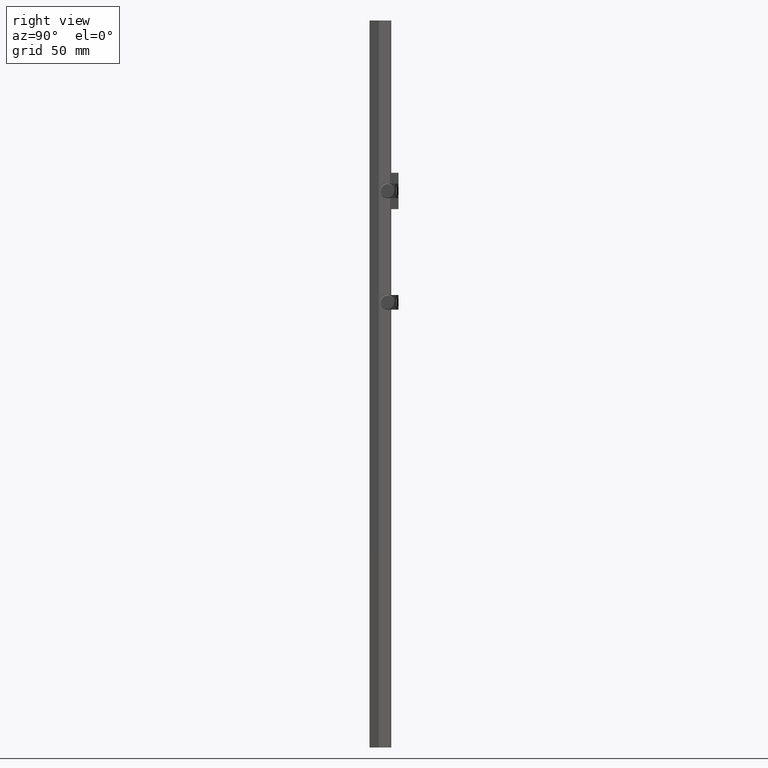
[diagram: clean part render]
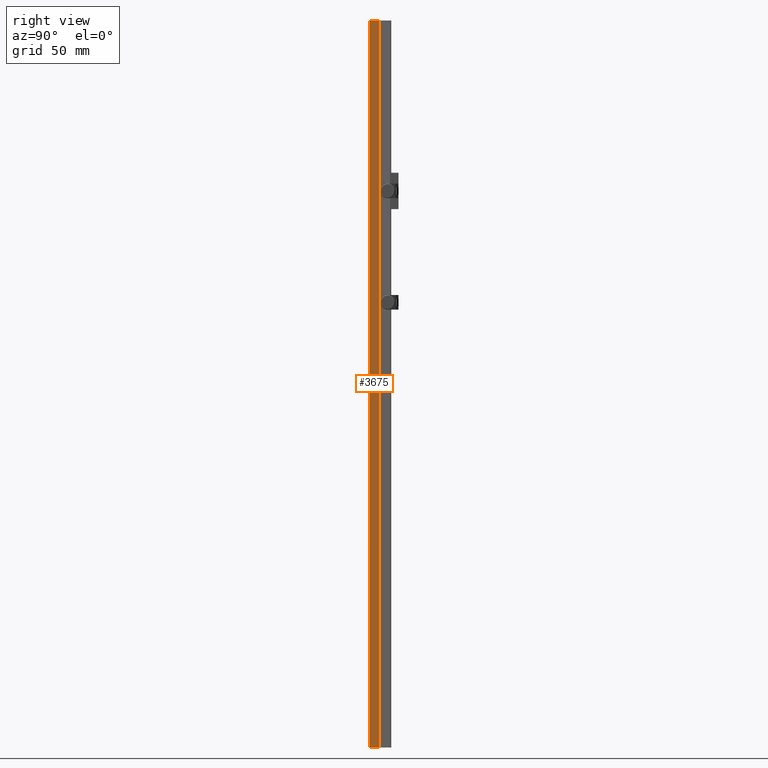
[diagram: same view with one face highlighted and labeled with its STEP entity id]
A machine part, right view. The second image highlights one B-rep face of the part: STEP entity #3675.
In plain terms, the highlighted planar face has unit normal (-1, -0, 0).
Its self-contained STEP definition (entity closure, byte-faithful):
#54 = ORIENTED_EDGE ( 'NONE', *, *, #4070, .F. ) ;
#238 = LINE ( 'NONE', #5365, #5312 ) ;
#351 = LINE ( 'NONE', #5810, #6372 ) ;
#661 = CARTESIAN_POINT ( 'NONE',  ( 20.00000000000000355, -6.499999999999993783, 250.0000000000000000 ) ) ;
#756 = EDGE_CURVE ( 'NONE', #7666, #1298, #238, .T. ) ;
#1298 = VERTEX_POINT ( 'NONE', #3364 ) ;
#1424 = VERTEX_POINT ( 'NONE', #6780 ) ;
#2619 = CARTESIAN_POINT ( 'NONE',  ( 20.00000000000000355, -6.499999999999993783, 250.0000000000000000 ) ) ;
#2630 = LINE ( 'NONE', #3965, #7120 ) ;
#3194 = DIRECTION ( 'NONE',  ( -0.000000000000000000, 0.000000000000000000, -1.000000000000000000 ) ) ;
#3202 = ORIENTED_EDGE ( 'NONE', *, *, #756, .T. ) ;
#3287 = FACE_OUTER_BOUND ( 'NONE', #8005, .T. ) ;
#3316 = ORIENTED_EDGE ( 'NONE', *, *, #5428, .F. ) ;
#3364 = CARTESIAN_POINT ( 'NONE',  ( 20.00000000000000000, 4.898587196589413026E-15, -250.0000000000000000 ) ) ;
#3397 = LINE ( 'NONE', #2619, #6246 ) ;
#3675 = ADVANCED_FACE ( 'NONE', ( #3287 ), #7923, .F. ) ;
#3790 = ORIENTED_EDGE ( 'NONE', *, *, #5981, .T. ) ;
#3965 = CARTESIAN_POINT ( 'NONE',  ( 20.00000000000000000, 4.898587196589413026E-15, 250.0000000000000000 ) ) ;
#4022 = DIRECTION ( 'NONE',  ( 5.337610695313253357E-16, -1.000000000000000000, 0.000000000000000000 ) ) ;
#4070 = EDGE_CURVE ( 'NONE', #7423, #1298, #2630, .T. ) ;
#4592 = DIRECTION ( 'NONE',  ( -5.337610695313253357E-16, 1.000000000000000000, 0.000000000000000000 ) ) ;
#4701 = DIRECTION ( 'NONE',  ( -1.000000000000000000, -5.337610695313253357E-16, 0.000000000000000000 ) ) ;
#5312 = VECTOR ( 'NONE', #5959, 1000.000000000000000 ) ;
#5365 = CARTESIAN_POINT ( 'NONE',  ( 20.00000000000000355, -6.499999999999993783, -250.0000000000000000 ) ) ;
#5428 = EDGE_CURVE ( 'NONE', #1424, #7423, #3397, .T. ) ;
#5634 = CARTESIAN_POINT ( 'NONE',  ( 20.00000000000000355, -6.499999999999993783, -250.0000000000000000 ) ) ;
#5810 = CARTESIAN_POINT ( 'NONE',  ( 20.00000000000000355, -6.499999999999993783, 250.0000000000000000 ) ) ;
#5959 = DIRECTION ( 'NONE',  ( -5.337610695313253357E-16, 1.000000000000000000, 0.000000000000000000 ) ) ;
#5981 = EDGE_CURVE ( 'NONE', #1424, #7666, #351, .T. ) ;
#6246 = VECTOR ( 'NONE', #4592, 1000.000000000000000 ) ;
#6372 = VECTOR ( 'NONE', #6497, 1000.000000000000000 ) ;
#6497 = DIRECTION ( 'NONE',  ( -0.000000000000000000, 0.000000000000000000, -1.000000000000000000 ) ) ;
#6678 = CARTESIAN_POINT ( 'NONE',  ( 20.00000000000000000, 4.898587196589413026E-15, 250.0000000000000000 ) ) ;
#6780 = CARTESIAN_POINT ( 'NONE',  ( 20.00000000000000355, -6.499999999999993783, 250.0000000000000000 ) ) ;
#7120 = VECTOR ( 'NONE', #3194, 1000.000000000000000 ) ;
#7423 = VERTEX_POINT ( 'NONE', #6678 ) ;
#7666 = VERTEX_POINT ( 'NONE', #5634 ) ;
#7923 = PLANE ( 'NONE',  #7940 ) ;
#7940 = AXIS2_PLACEMENT_3D ( 'NONE', #661, #4701, #4022 ) ;
#8005 = EDGE_LOOP ( 'NONE', ( #3202, #54, #3316, #3790 ) ) ;